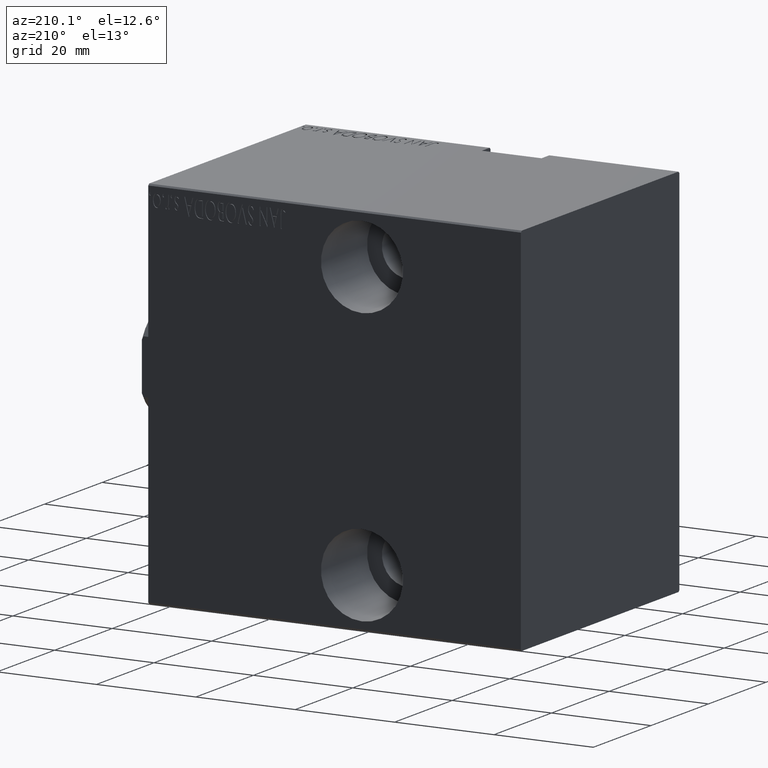
[diagram: clean part render]
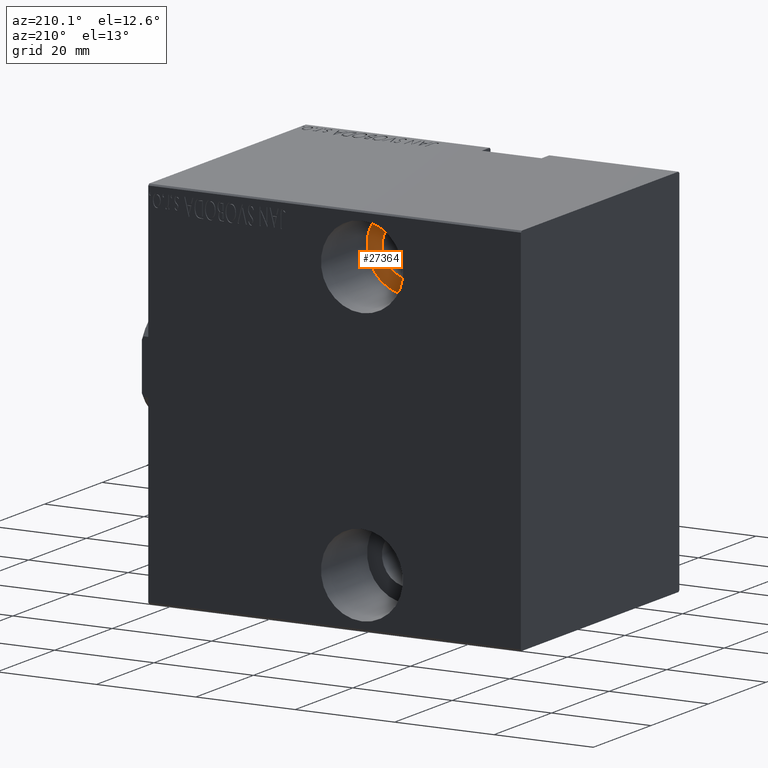
[diagram: same view with one face highlighted and labeled with its STEP entity id]
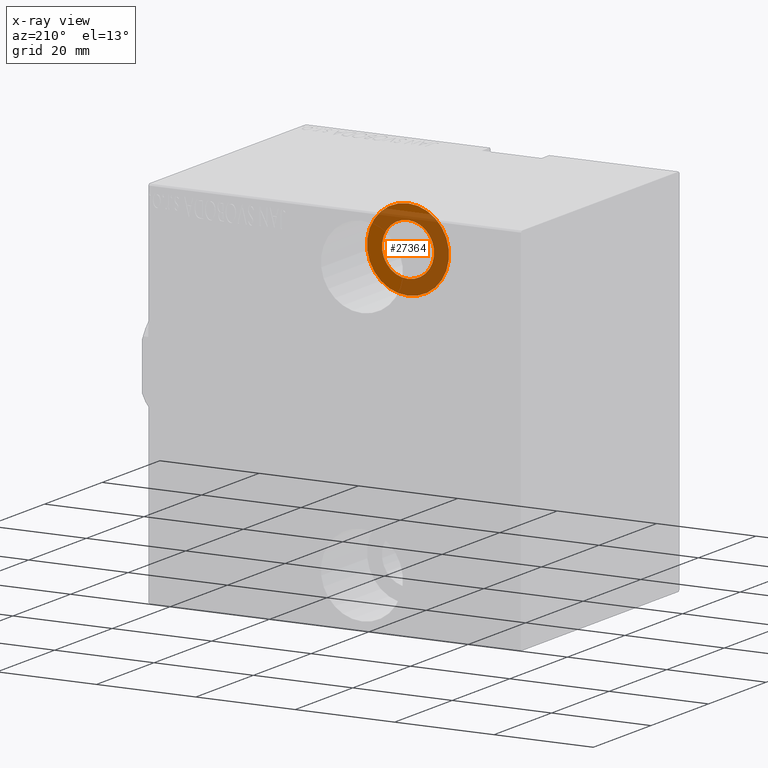
[diagram: x-ray of the same camera — body ghosted, the highlighted face saturated]
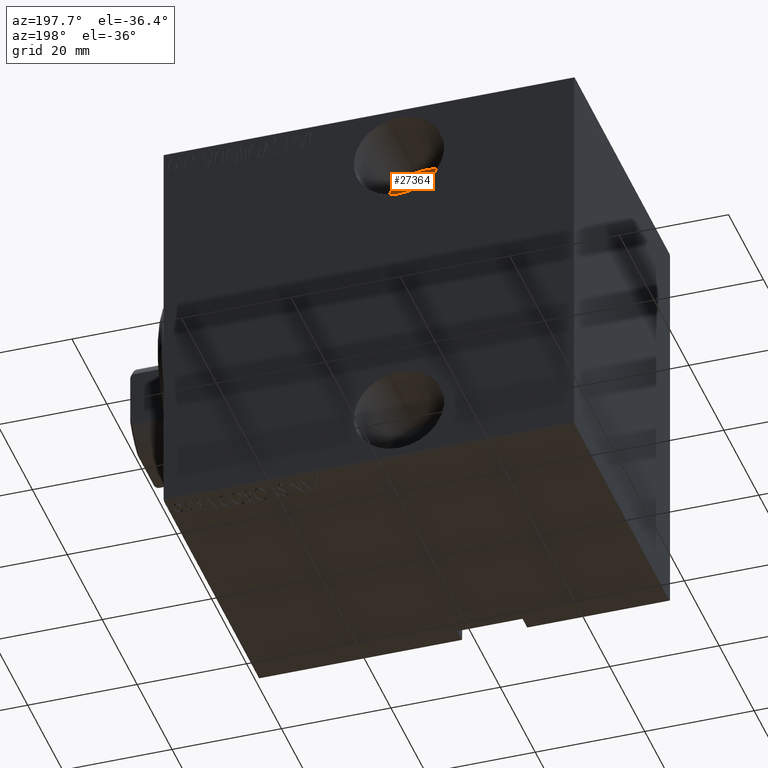
[diagram: same view with one face highlighted and labeled with its STEP entity id]
A machine part, auxiliary view. The second image highlights one B-rep face of the part: STEP entity #27364.
The next image is the same camera in x-ray: the body ghosted, the highlighted face saturated — about 63% of this face is hidden behind the body in this view.
A second angle (auxiliary view) of the same face is appended — the face is thin or edge-on in the first view.
In plain terms, the highlighted planar face has unit normal (0, 1, 0).
Its self-contained STEP definition (entity closure, byte-faithful):
#3167 = CARTESIAN_POINT ( 'NONE',  ( 43.00000000000001421, -11.49999999999999289, 27.50000000000000000 ) ) ;
#3289 = CARTESIAN_POINT ( 'NONE',  ( 43.00000000000001421, -11.49999999999999289, 27.49999999999999645 ) ) ;
#4641 = CIRCLE ( 'NONE', #25207, 5.249999999999997335 ) ;
#7106 = CARTESIAN_POINT ( 'NONE',  ( 43.00000000000001421, -11.49999999999999467, 22.25000000000000355 ) ) ;
#10509 = AXIS2_PLACEMENT_3D ( 'NONE', #36124, #12498, #41949 ) ;
#11237 = ORIENTED_EDGE ( 'NONE', *, *, #26380, .T. ) ;
#12498 = DIRECTION ( 'NONE',  ( 0.000000000000000000, -1.000000000000000000, 1.963837897332234442E-16 ) ) ;
#15356 = EDGE_LOOP ( 'NONE', ( #24761, #19015 ) ) ;
#16682 = EDGE_CURVE ( 'NONE', #27468, #34437, #28120, .T. ) ;
#17334 = CIRCLE ( 'NONE', #24206, 8.250000000000003553 ) ;
#17386 = VERTEX_POINT ( 'NONE', #17424 ) ;
#17424 = CARTESIAN_POINT ( 'NONE',  ( 43.00000000000001421, -11.49999999999999112, 35.75000000000000711 ) ) ;
#19015 = ORIENTED_EDGE ( 'NONE', *, *, #16682, .T. ) ;
#20380 = DIRECTION ( 'NONE',  ( 0.000000000000000000, -1.000000000000000000, 1.963837897332234442E-16 ) ) ;
#22749 = DIRECTION ( 'NONE',  ( 0.000000000000000000, -3.304235192336776991E-16, -1.000000000000000000 ) ) ;
#22789 = FACE_OUTER_BOUND ( 'NONE', #31117, .T. ) ;
#23531 = AXIS2_PLACEMENT_3D ( 'NONE', #33517, #20380, #37164 ) ;
#24206 = AXIS2_PLACEMENT_3D ( 'NONE', #3289, #35929, #32283 ) ;
#24761 = ORIENTED_EDGE ( 'NONE', *, *, #29528, .T. ) ;
#25207 = AXIS2_PLACEMENT_3D ( 'NONE', #3167, #42483, #32812 ) ;
#26380 = EDGE_CURVE ( 'NONE', #41827, #17386, #17334, .T. ) ;
#27364 = ADVANCED_FACE ( 'NONE', ( #22789, #35480 ), #39366, .T. ) ;
#27468 = VERTEX_POINT ( 'NONE', #7106 ) ;
#28120 = CIRCLE ( 'NONE', #31528, 5.249999999999997335 ) ;
#28328 = CIRCLE ( 'NONE', #23531, 8.250000000000003553 ) ;
#29220 = CARTESIAN_POINT ( 'NONE',  ( 43.00000000000001421, -11.49999999999999289, 27.50000000000000000 ) ) ;
#29528 = EDGE_CURVE ( 'NONE', #34437, #27468, #4641, .T. ) ;
#31117 = EDGE_LOOP ( 'NONE', ( #11237, #40426 ) ) ;
#31528 = AXIS2_PLACEMENT_3D ( 'NONE', #29220, #39113, #22749 ) ;
#32283 = DIRECTION ( 'NONE',  ( 0.000000000000000000, -2.102695122396128930E-16, -1.000000000000000000 ) ) ;
#32653 = EDGE_CURVE ( 'NONE', #17386, #41827, #28328, .T. ) ;
#32812 = DIRECTION ( 'NONE',  ( 0.000000000000000000, -3.304235192336776991E-16, -1.000000000000000000 ) ) ;
#33517 = CARTESIAN_POINT ( 'NONE',  ( 43.00000000000001421, -11.49999999999999289, 27.49999999999999645 ) ) ;
#34437 = VERTEX_POINT ( 'NONE', #36164 ) ;
#35480 = FACE_BOUND ( 'NONE', #15356, .T. ) ;
#35929 = DIRECTION ( 'NONE',  ( 0.000000000000000000, -1.000000000000000000, 1.963837897332234442E-16 ) ) ;
#36124 = CARTESIAN_POINT ( 'NONE',  ( 43.00000000000001421, -11.49999999999999289, 27.49999999999999645 ) ) ;
#36164 = CARTESIAN_POINT ( 'NONE',  ( 43.00000000000001421, -11.49999999999999112, 32.74999999999999289 ) ) ;
#37164 = DIRECTION ( 'NONE',  ( 0.000000000000000000, -2.102695122396128930E-16, -1.000000000000000000 ) ) ;
#39113 = DIRECTION ( 'NONE',  ( -0.000000000000000000, 1.000000000000000000, -1.963837897332234442E-16 ) ) ;
#39366 = PLANE ( 'NONE',  #10509 ) ;
#40426 = ORIENTED_EDGE ( 'NONE', *, *, #32653, .T. ) ;
#41827 = VERTEX_POINT ( 'NONE', #42121 ) ;
#41949 = DIRECTION ( 'NONE',  ( 0.000000000000000000, -1.963837897332234442E-16, -1.000000000000000000 ) ) ;
#42121 = CARTESIAN_POINT ( 'NONE',  ( 43.00000000000001421, -11.49999999999999467, 19.24999999999999289 ) ) ;
#42483 = DIRECTION ( 'NONE',  ( -0.000000000000000000, 1.000000000000000000, -1.963837897332234442E-16 ) ) ;